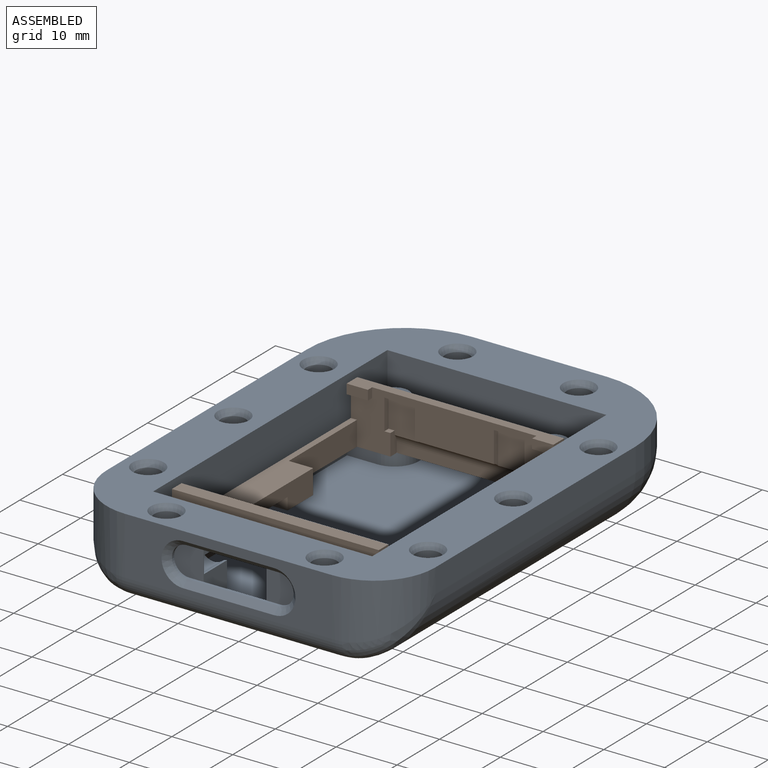
[diagram: assembled view]
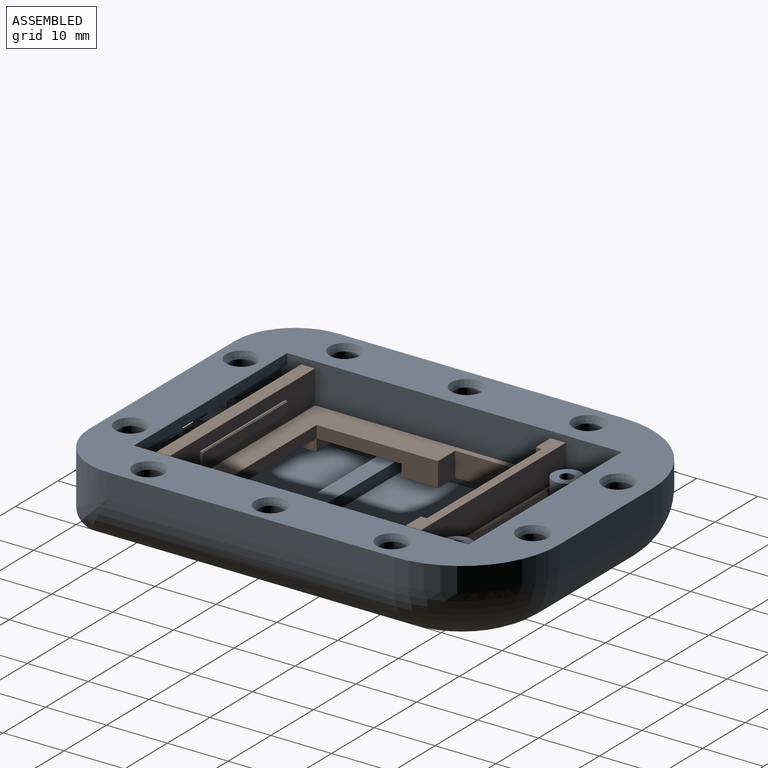
[diagram: assembled view, second angle]
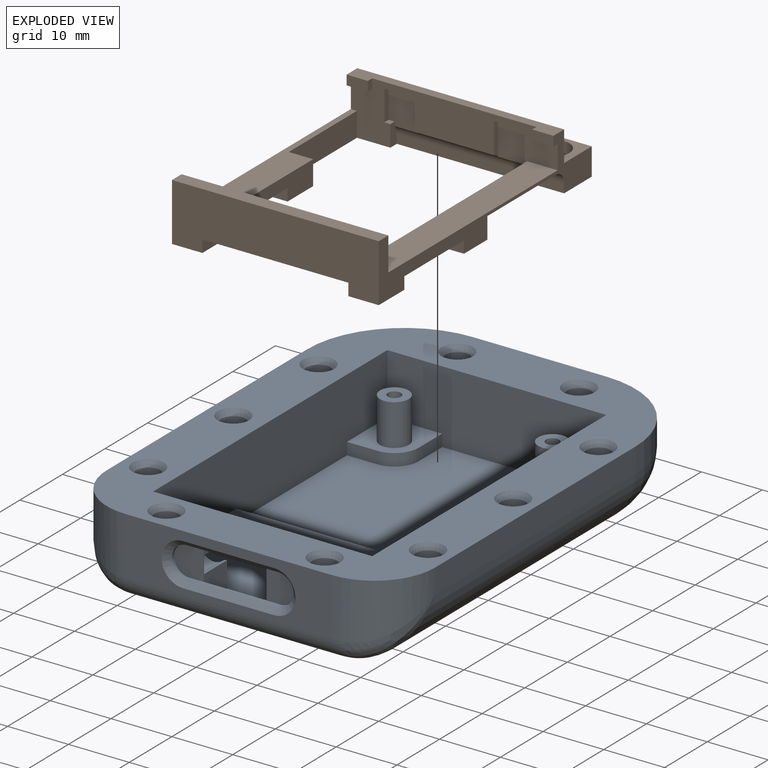
[diagram: exploded view]
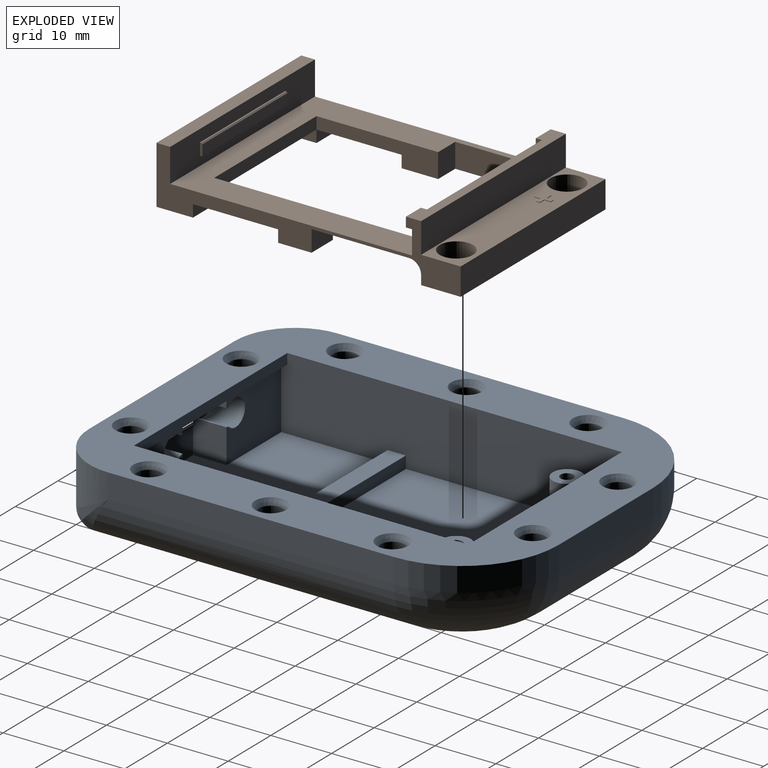
[diagram: exploded view, second angle]
ASSEMBLY  parts=2 mates=2
PART A: 107 faces, bbox 54x73x13.2 mm
  f0: plane 12.85x10.3mm, normal (0,1,0), area 116.8mm2, adj f6,f7,f43,f44,f52,f53,f54
  f1: plane 12.85x10.3mm, normal (0,1,0), area 116.8mm2, adj f2,f3,f6,f43,f56,f57,f58
  f2: plane 56x12mm, normal (1,0,0), area 645.3mm2, adj f1,f6,f8,f9,f10,f24,f27,f36
  f3: plane 10.3x5.5mm, normal (1,0,0), area 41.7mm2, adj f1,f4,f6,f43,f45,f51,f57,f58
  f4: plane 10.3x0.8mm, normal (0,1,0), area 8.2mm2, adj f3,f43,f44,f47
  f5: plane 34x9.5mm, normal (0,-1,0), area 179.5mm2, adj f10,f16,f17,f62,f96,f97,f98,f99
  f6: plane 36x23mm, normal (0,0,1), area 686.6mm2, adj f0,f1,f2,f3,f7,f37,f44,f45
  f7: plane 56x12mm, normal (-1,0,0), area 645.3mm2, adj f0,f6,f8,f9,f10,f32,f33,f36
  f8: plane 36x35.5mm, normal (0,0,1), area 1113.9mm2, adj f2,f7,f9,f24,f25,f26,f30,f31
  f9: plane 36x12mm, normal (0,-1,0), area 396mm2, adj f2,f7,f8,f10,f26,f27,f30,f33
  f10: plane 73x54mm, normal (0,0,1), area 1600.5mm2, adj f2,f5,f7,f9,f11,f12,f13,f14
  f11: plane 47x4mm, normal (1,0,0), area 188mm2, adj f10,f12,f17,f19
  f12: cylinder r=16mm len=16mm, axis (0,0,-1), area 100.5mm2, adj f10,f11,f13,f20
  f13: plane 22x4mm, normal (0,1,0), area 88mm2, adj f10,f12,f14,f21
  f14: cylinder r=16mm len=16mm, axis (0,0,-1), area 100.5mm2, adj f10,f13,f15,f23
  f15: plane 47x4mm, normal (-1,0,0), area 188mm2, adj f10,f14,f16,f22
  f16: cylinder r=10mm len=10mm, axis (0,0,-1), area 120.5mm2, adj f5,f10,f15,f63,f64
  f17: cylinder r=10mm len=10mm, axis (0,0,-1), area 120.5mm2, adj f5,f10,f11,f60,f61
  f18: plane 60.5x36mm, normal (0,0,-1), area 2037.2mm2, adj f19,f20,f21,f22,f23,f61,f62,f63
  f19: cylinder r=9mm len=53.42mm, axis (0,1,0), area 719.8mm2, adj f11,f18,f20,f60
  f20: torus R=7mm, axis (0,0,1), area 282.7mm2, adj f12,f18,f19,f21
  f21: cylinder r=9mm len=22mm, axis (-1,0,0), area 311mm2, adj f13,f18,f20,f23
  f22: cylinder r=9mm len=53.42mm, axis (0,-1,0), area 719.8mm2, adj f15,f18,f23,f64
  f23: torus R=7mm, axis (0,0,1), area 282.7mm2, adj f14,f18,f21,f22
  f24: plane 5x2mm, normal (0,-1,0), area 10mm2, adj f2,f8,f25,f27
  f25: cylinder r=4mm len=4mm, axis (0,0,-1), area 12.6mm2, adj f8,f24,f26,f27
  f26: plane 5.5x2mm, normal (1,0,0), area 11mm2, adj f8,f9,f25,f27
  f27: plane 9.5x9mm, normal (0,0,1), area 64.3mm2, adj f2,f9,f24,f25,f26,f29
  f28: plane 4.75x4.75mm, normal (0,0,1), area 14.1mm2, adj f29,f42
  f29: cylinder r=2.38mm len=6.8mm, axis (0,0,-1), area 101.5mm2, adj f27,f28
  f30: plane 5.5x2mm, normal (-1,0,0), area 11mm2, adj f8,f9,f31,f33
  f31: cylinder r=4mm len=4mm, axis (0,0,-1), area 12.6mm2, adj f8,f30,f32,f33
  f32: plane 5x2mm, normal (0,-1,0), area 10mm2, adj f7,f8,f31,f33
  f33: plane 9.5x9mm, normal (0,0,1), area 64.3mm2, adj f7,f9,f30,f31,f32,f35
  f34: plane 4.75x4.75mm, normal (0,0,1), area 14.1mm2, adj f35,f40
  f35: cylinder r=2.38mm len=6.8mm, axis (0,0,-1), area 101.5mm2, adj f33,f34
  f36: plane 36x2mm, normal (0,1,0), area 72mm2, adj f2,f7,f8,f38
  f37: plane 36x2mm, normal (0,-1,0), area 72mm2, adj f2,f6,f7,f38
  f38: plane 36x3mm, normal (0,0,1), area 108mm2, adj f2,f7,f36,f37
  f39: cone r=0mm half-angle=59deg, axis (0,0,1), area 4.2mm2, adj f40
  f40: cylinder r=1.07mm len=3.55mm, axis (0,0,1), area 24mm2, adj f34,f39
  f41: cone r=0mm half-angle=59deg, axis (0,0,1), area 4.2mm2, adj f42
  f42: cylinder r=1.07mm len=3.55mm, axis (0,0,1), area 24mm2, adj f28,f41
  f43: plane 36x6.5mm, normal (0,0,-1), area 92.7mm2, adj f0,f1,f2,f3,f4,f7,f44,f65
  f44: plane 10.3x5.5mm, normal (-1,0,0), area 41.7mm2, adj f0,f4,f6,f43,f45,f46,f52,f54
  f45: plane 10.3x4.5mm, normal (0,1,0), area 46.3mm2, adj f3,f6,f44,f49
  f46: plane 5x4.85mm, normal (0,-1,0), area 21.6mm2, adj f44,f47,f49,f50
  f47: plane 15x0.5mm, normal (0,0,-1), area 7.5mm2, adj f4,f46,f48,f50,f51,f97
  f48: cylinder r=2.5mm len=5mm, axis (0,-1,0), area 3.9mm2, adj f47,f49,f51,f96
  f49: plane 15x0.5mm, normal (0,0,1), area 7.5mm2, adj f45,f46,f48,f50,f51,f98
  f50: cylinder r=2.5mm len=5mm, axis (0,-1,0), area 3.9mm2, adj f46,f47,f49,f99
  f51: plane 5x4.85mm, normal (0,-1,0), area 21.6mm2, adj f3,f47,f48,f49
  f52: cylinder r=1.05mm len=5.4mm, axis (0,1,0), area 4.1mm2, adj f0,f44,f53,f55
  f53: cylinder r=2.2mm len=5.4mm, axis (0,1,0), area 54.5mm2, adj f0,f52,f54,f55
  f54: cylinder r=1.05mm len=5.4mm, axis (0,1,0), area 4.1mm2, adj f0,f44,f53,f55
  f55: plane 4.4x4.35mm, normal (0,1,0), area 15.5mm2, adj f44,f52,f53,f54
  f56: cylinder r=2.2mm len=5.4mm, axis (0,1,0), area 54.5mm2, adj f1,f57,f58,f59
  f57: cylinder r=1.05mm len=5.4mm, axis (0,1,0), area 4.1mm2, adj f1,f3,f56,f59
  f58: cylinder r=1.05mm len=5.4mm, axis (0,1,0), area 4.1mm2, adj f1,f3,f56,f59
  f59: plane 4.4x4.35mm, normal (0,1,0), area 15.5mm2, adj f3,f56,f57,f58
  f60: bspline ~10.63x10.02mm, area 51.1mm2, adj f17,f19,f61
  f61: torus R=6.5mm, axis (0,0,1), area 7.4mm2, adj f17,f18,f60,f62
  f62: cylinder r=3.5mm len=34mm, axis (1,0,0), area 186.9mm2, adj f5,f18,f61,f63
  f63: torus R=6.5mm, axis (0,0,1), area 7.4mm2, adj f16,f18,f62,f64
  f64: bspline ~10.63x10.02mm, area 51.1mm2, adj f16,f22,f63
  f65: plane 36x1.7mm, normal (0,1,0), area 61.2mm2, adj f2,f7,f10,f43
  f66: cone r=0mm half-angle=59deg, axis (0,0,1), area 14.7mm2, adj f67
  f67: cylinder r=2mm len=5.5mm, axis (0,0,1), area 69.1mm2, adj f66,f86
  f68: cone r=0mm half-angle=59deg, axis (0,0,1), area 14.7mm2, adj f69
  f69: cylinder r=2mm len=5.5mm, axis (0,0,1), area 69.1mm2, adj f68,f87
  f70: cone r=0mm half-angle=59deg, axis (0,0,1), area 14.7mm2, adj f71
  f71: cylinder r=2mm len=5.5mm, axis (0,0,1), area 69.1mm2, adj f70,f88
  f72: cone r=0mm half-angle=59deg, axis (0,0,1), area 14.7mm2, adj f73
  f73: cylinder r=2mm len=5.5mm, axis (0,0,1), area 69.1mm2, adj f72,f89
  f74: cone r=0mm half-angle=59deg, axis (0,0,1), area 14.7mm2, adj f75
  f75: cylinder r=2mm len=5.5mm, axis (0,0,1), area 69.1mm2, adj f74,f90
  f76: cone r=0mm half-angle=59deg, axis (0,0,1), area 14.7mm2, adj f77
  f77: cylinder r=2mm len=5.5mm, axis (0,0,1), area 69.1mm2, adj f76,f91
  f78: cone r=0mm half-angle=59deg, axis (0,0,1), area 14.7mm2, adj f79
  f79: cylinder r=2mm len=5.5mm, axis (0,0,1), area 69.1mm2, adj f78,f92
  f80: cone r=0mm half-angle=59deg, axis (0,0,1), area 14.7mm2, adj f81
  f81: cylinder r=2mm len=5.5mm, axis (0,0,1), area 69.1mm2, adj f80,f93
  f82: cone r=0mm half-angle=59deg, axis (0,0,1), area 14.7mm2, adj f83
  f83: cylinder r=2mm len=5.5mm, axis (0,0,1), area 69.1mm2, adj f82,f94
  f84: cone r=0mm half-angle=59deg, axis (0,0,1), area 14.7mm2, adj f85
  f85: cylinder r=2mm len=5.5mm, axis (0,0,1), area 69.1mm2, adj f84,f95
  f86: cone r=2mm half-angle=30deg, axis (0,0,1), area 16.6mm2, adj f10,f67
  f87: cone r=2mm half-angle=30deg, axis (0,0,1), area 16.6mm2, adj f10,f69
  f88: cone r=2mm half-angle=30deg, axis (0,0,1), area 16.6mm2, adj f10,f71
  f89: cone r=2mm half-angle=30deg, axis (0,0,1), area 16.6mm2, adj f10,f73
  f90: cone r=2mm half-angle=30deg, axis (0,0,1), area 16.6mm2, adj f10,f75
  f91: cone r=2mm half-angle=30deg, axis (0,0,1), area 16.6mm2, adj f10,f77
  f92: cone r=2mm half-angle=30deg, axis (0,0,1), area 16.6mm2, adj f10,f79
  f93: cone r=2mm half-angle=30deg, axis (0,0,1), area 16.6mm2, adj f10,f81
  f94: cone r=2mm half-angle=30deg, axis (0,0,1), area 16.6mm2, adj f10,f83
  f95: cone r=2mm half-angle=30deg, axis (0,0,1), area 16.6mm2, adj f10,f85
  f96: cone r=2.5mm half-angle=45deg, axis (0,-1,0), area 13.3mm2, adj f5,f48,f97,f98
  f97: plane 15x1mm, normal (0,-0.71,-0.71), area 21.2mm2, adj f5,f47,f96,f99
  f98: plane 15x1mm, normal (0,-0.71,0.71), area 21.2mm2, adj f5,f49,f96,f99
  f99: cone r=3.5mm half-angle=45deg, axis (0,-1,0), area 13.3mm2, adj f5,f50,f97,f98
  f100: plane 12x12mm, normal (-0.71,0.71,0), area 3.4mm2, adj f18,f101,f105,f106
  f101: plane 12x12mm, normal (0.71,0.71,0), area 3.4mm2, adj f18,f100,f102,f106
  f102: plane 7.07x0.2mm, normal (0,-1,0), area 1.4mm2, adj f18,f101,f103,f106
  f103: plane 4.93x4.93mm, normal (-0.71,-0.71,0), area 1.4mm2, adj f18,f102,f104,f106
  f104: plane 4.93x4.93mm, normal (0.71,-0.71,0), area 1.4mm2, adj f18,f103,f105,f106
  f105: plane 7.07x0.2mm, normal (0,-1,0), area 1.4mm2, adj f18,f100,f104,f106
  f106: plane 24x12mm, normal (0,0,-1), area 119.7mm2, adj f100,f101,f102,f103,f104,f105
PART B: 70 faces, bbox 34x50x9.5 mm
  f0: plane 6x5mm, normal (0,0,-1), area 30mm2, adj f2,f3,f6,f53
  f1: plane 5x2mm, normal (0,1,0), area 10mm2, adj f5,f7,f51,f52
  f2: plane 5x2mm, normal (0,1,0), area 10mm2, adj f0,f6,f40,f53
  f3: plane 34x9.5mm, normal (0,-1,0), area 275mm2, adj f0,f5,f6,f7,f42,f52,f53,f54
  f4: plane 20x4mm, normal (1,0,0), area 52mm2, adj f11,f17,f18,f19,f50,f51
  f5: plane 6x5mm, normal (0,0,-1), area 30mm2, adj f1,f3,f7,f52
  f6: plane 50x9.5mm, normal (1,0,0), area 135.3mm2, adj f0,f2,f3,f8,f11,f12,f13,f19
  f7: plane 50x9.5mm, normal (-1,0,0), area 197.5mm2, adj f1,f3,f5,f8,f11,f13,f19,f20
  f8: plane 34x4.5mm, normal (0,1,0), area 153mm2, adj f6,f7,f19,f49
  f9: cylinder r=2.75mm len=5.5mm, axis (0,0,-1), area 77.8mm2, adj f19,f49
  f10: cylinder r=2.75mm len=5.5mm, axis (0,0,-1), area 77.8mm2, adj f19,f49
  f11: plane 39.75x34mm, normal (0,0,1), area 423.5mm2, adj f4,f6,f7,f13,f15,f16,f17,f18
  f12: plane 5.5x5mm, normal (0,0,-1), area 27.5mm2, adj f6,f16,f38,f39
  f13: plane 34x9.5mm, normal (0,-1,0), area 159.9mm2, adj f6,f7,f11,f14,f15,f16,f19,f20
  f14: plane 1x1mm, normal (0,0,1), area 1mm2, adj f13,f31,f34,f36
  f15: plane 16x4mm, normal (1,0,0), area 64mm2, adj f11,f13,f18,f19
  f16: plane 36x4mm, normal (-1,0,0), area 58.3mm2, adj f11,f12,f13,f17,f35,f38,f39,f40
  f17: plane 24x2mm, normal (0,1,0), area 48mm2, adj f4,f11,f16,f54
  f18: plane 4x4mm, normal (0,1,0), area 16mm2, adj f4,f11,f15,f19
  f19: plane 34x30mm, normal (0,0,-1), area 229.2mm2, adj f4,f6,f7,f8,f9,f10,f13,f15
  f20: plane 34x2.5mm, normal (0,0,1), area 58mm2, adj f6,f7,f13,f22,f23,f24,f26,f48
  f21: plane 3.5x1mm, normal (0,0,-1), area 3.5mm2, adj f6,f13,f22,f23
  f22: plane 1.6x1mm, normal (-1,0,0), area 1.6mm2, adj f13,f20,f21,f23
  f23: plane 3.5x1.6mm, normal (0,-1,0), area 5.6mm2, adj f6,f20,f21,f22
  f24: plane 1.6x1mm, normal (1,0,0), area 1.6mm2, adj f13,f20,f25,f26
  f25: plane 3.5x1mm, normal (0,0,-1), area 3.5mm2, adj f7,f13,f24,f26
  f26: plane 3.5x1.6mm, normal (0,-1,0), area 5.6mm2, adj f7,f20,f24,f25
  f27: plane 5.68x1mm, normal (1,0,0), area 5.3mm2, adj f13,f29,f30,f69
  f28: plane 5.68x1mm, normal (-1,0,0), area 5.3mm2, adj f13,f29,f30,f69
  f29: plane 5x1mm, normal (0,0,-1), area 5mm2, adj f13,f27,f28,f30
  f30: plane 5.68x5mm, normal (0,-1,0), area 28.4mm2, adj f27,f28,f29,f69
  f31: plane 5x1mm, normal (1,0,0), area 5mm2, adj f13,f14,f33,f34
  f32: plane 5.68x1mm, normal (-1,0,0), area 5.3mm2, adj f13,f33,f34,f69
  f33: plane 5x1mm, normal (0,0,-1), area 5mm2, adj f13,f31,f32,f34
  f34: plane 5.68x5mm, normal (0,-1,0), area 27.7mm2, adj f14,f31,f32,f33,f36,f69
  f35: plane 16x5mm, normal (0,0,-1), area 80mm2, adj f6,f16,f38,f69
  f36: plane 3.5x1.5mm, normal (1,0,0), area 4.7mm2, adj f13,f14,f19,f34,f37,f69
  f37: plane 27.5x1.5mm, normal (0,-1,0), area 41.3mm2, adj f6,f19,f36,f69
  f38: plane 5x3.5mm, normal (0,1,0), area 17.5mm2, adj f6,f12,f16,f35
  f39: plane 5x2mm, normal (0,-1,0), area 10mm2, adj f6,f12,f16,f40
  f40: plane 14x5mm, normal (0,0,-1), area 70mm2, adj f2,f6,f16,f39
  f41: plane 34x5.5mm, normal (0,1,0), area 147mm2, adj f6,f7,f11,f42,f43,f44,f45,f46
  f42: plane 34x2.25mm, normal (0,0,1), area 76.5mm2, adj f3,f6,f7,f41
  f43: plane 2x0.4mm, normal (-1,0,0), area 0.8mm2, adj f41,f44,f46,f47,f55
  f44: plane 20x0.2mm, normal (0,0,1), area 4mm2, adj f41,f43,f45,f55
  f45: plane 2x0.4mm, normal (1,0,0), area 0.8mm2, adj f41,f44,f46,f47,f55
  f46: plane 20x0.4mm, normal (0,0,-1), area 8mm2, adj f41,f43,f45,f47
  f47: plane 20x1.8mm, normal (0,1,0), area 36mm2, adj f43,f45,f46,f55
  f48: plane 34x5mm, normal (0,1,0), area 170mm2, adj f6,f7,f20,f49
  f49: plane 34x6.5mm, normal (0,0,1), area 170.6mm2, adj f6,f7,f8,f9,f10,f48,f56,f57
  f50: plane 5x2mm, normal (0,-1,0), area 10mm2, adj f4,f7,f19,f51
  f51: plane 14x5mm, normal (0,0,-1), area 70mm2, adj f1,f4,f7,f50
  f52: plane 6x2mm, normal (1,0,0), area 12mm2, adj f1,f3,f5,f54
  f53: plane 6x2mm, normal (-1,0,0), area 12mm2, adj f0,f2,f3,f54
  f54: plane 24x6mm, normal (0,0,-1), area 144mm2, adj f3,f17,f52,f53
  f55: plane 20x0.2mm, normal (0,0.71,0.71), area 5.7mm2, adj f43,f44,f45,f47
  f56: plane 1.06x0.1mm, normal (0,-1,0), area 0.1mm2, adj f49,f57,f67,f68
  f57: plane 1.06x0.1mm, normal (-1,0,0), area 0.1mm2, adj f49,f56,f58,f68
  f58: plane 0.6x0.1mm, normal (0,-1,0), area 0.1mm2, adj f49,f57,f59,f68
  f59: plane 1.06x0.1mm, normal (1,0,0), area 0.1mm2, adj f49,f58,f60,f68
  f60: plane 1.06x0.1mm, normal (0,-1,0), area 0.1mm2, adj f49,f59,f61,f68
  f61: plane 0.6x0.1mm, normal (1,0,0), area 0.1mm2, adj f49,f60,f62,f68
  f62: plane 1.06x0.1mm, normal (0,1,0), area 0.1mm2, adj f49,f61,f63,f68
  f63: plane 1.07x0.1mm, normal (1,0,0), area 0.1mm2, adj f49,f62,f64,f68
  f64: plane 0.6x0.1mm, normal (0,1,0), area 0.1mm2, adj f49,f63,f65,f68
  f65: plane 1.07x0.1mm, normal (-1,0,0), area 0.1mm2, adj f49,f64,f66,f68
  f66: plane 1.06x0.1mm, normal (0,1,0), area 0.1mm2, adj f49,f65,f67,f68
  f67: plane 0.6x0.1mm, normal (-1,0,0), area 0.1mm2, adj f49,f56,f66,f68
  f68: plane 2.73x2.73mm, normal (0,0,1), area 2.9mm2, adj f56,f57,f58,f59,f60,f61,f62,f63
  f69: cylinder r=2mm len=27.5mm, axis (-1,0,0), area 64.3mm2, adj f6,f13,f16,f27,f28,f30,f32,f34
PLACE A t=(-5.68,-8.87,-11.63)mm
PLACE B t=(-5.68,18.13,-8.63)mm
MATE planar A.f27 <-> B.f19  axis (0,0,1) through (-14.68,17.38,-8.63)mm
MATE slider B.f9 <-> A.f25  axis (0,0,1) through (-18.68,14.63,-4.13)mm
